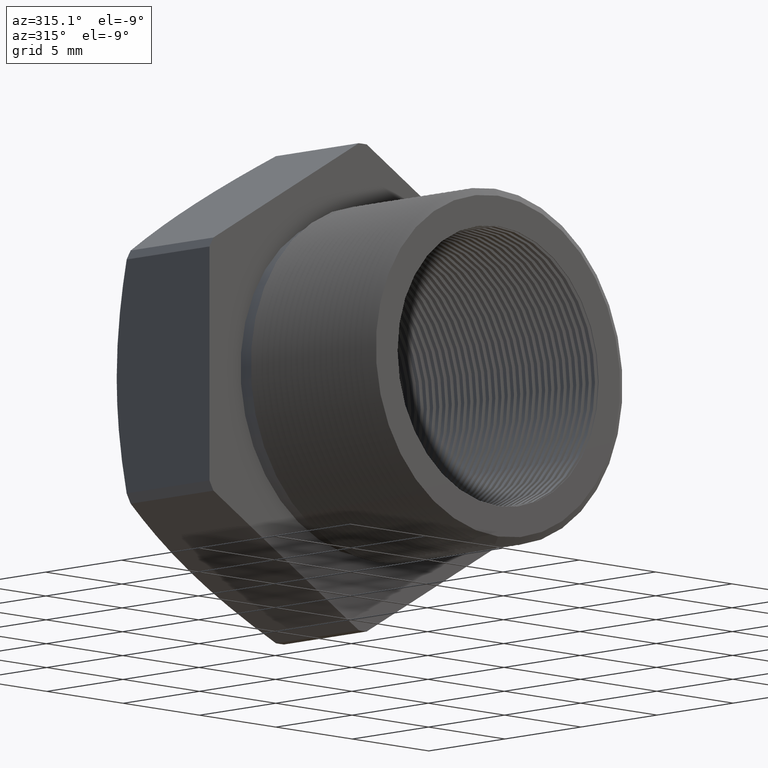
[diagram: clean part render]
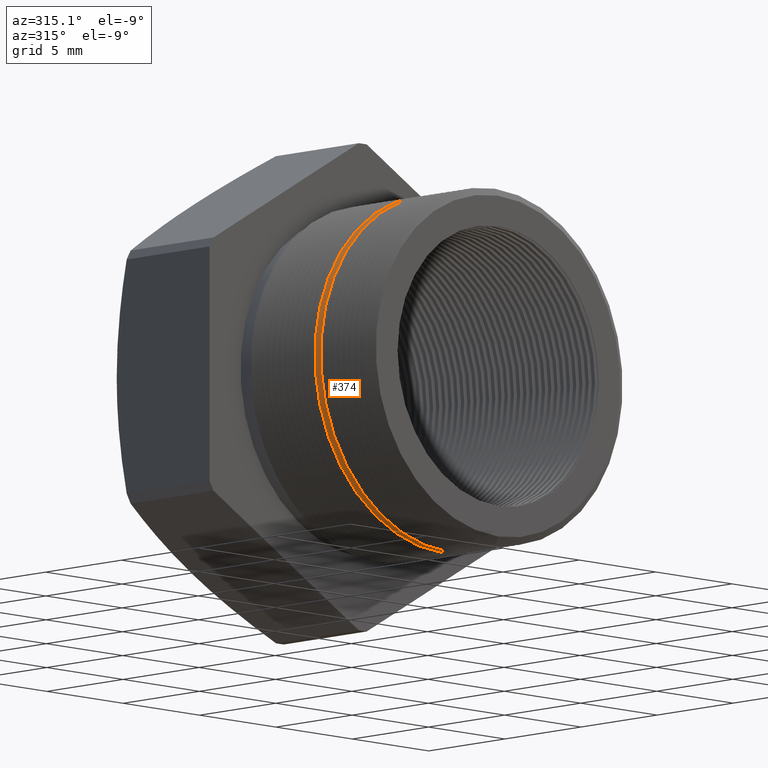
[diagram: same view with one face highlighted and labeled with its STEP entity id]
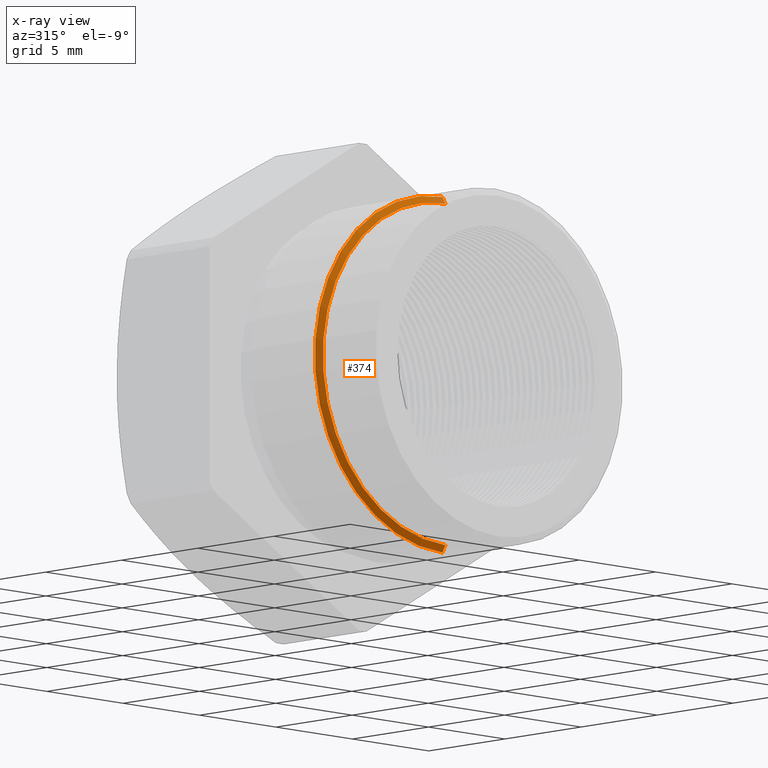
[diagram: x-ray of the same camera — body ghosted, the highlighted face saturated]
A machine part, auxiliary view. The second image highlights one B-rep face of the part: STEP entity #374.
The next image is the same camera in x-ray: the body ghosted, the highlighted face saturated — about 2% of this face is hidden behind the body in this view.
In plain terms, the highlighted conical surface has half-angle 60 deg.
Its self-contained STEP definition (entity closure, byte-faithful):
#345 = ORIENTED_EDGE ( 'NONE', *, *, #418, .F. ) ;
#347 = EDGE_LOOP ( 'NONE', ( #359, #345, #404, #389 ) ) ;
#359 = ORIENTED_EDGE ( 'NONE', *, *, #2140, .F. ) ;
#366 = EDGE_CURVE ( 'NONE', #2141, #2144, #3393, .T. ) ;
#374 = ADVANCED_FACE ( 'NONE', ( #3372 ), #3371, .T. ) ;
#389 = ORIENTED_EDGE ( 'NONE', *, *, #366, .F. ) ;
#404 = ORIENTED_EDGE ( 'NONE', *, *, #2146, .T. ) ;
#418 = EDGE_CURVE ( 'NONE', #2159, #2158, #3489, .T. ) ;
#2140 = EDGE_CURVE ( 'NONE', #2158, #2141, #6614, .T. ) ;
#2141 = VERTEX_POINT ( 'NONE', #6610 ) ;
#2144 = VERTEX_POINT ( 'NONE', #6604 ) ;
#2146 = EDGE_CURVE ( 'NONE', #2159, #2144, #6603, .T. ) ;
#2158 = VERTEX_POINT ( 'NONE', #6635 ) ;
#2159 = VERTEX_POINT ( 'NONE', #6634 ) ;
#3366 = DIRECTION ( 'NONE',  ( 0.0000000000000000000, 0.0000000000000000000, 1.000000000000000000 ) ) ;
#3367 = DIRECTION ( 'NONE',  ( -0.0000000000000000000, 1.000000000000000000, -0.0000000000000000000 ) ) ;
#3368 = CARTESIAN_POINT ( 'NONE',  ( 0.0000000000000000000, -0.03854510941705204700, 0.0000000000000000000 ) ) ;
#3369 = AXIS2_PLACEMENT_3D ( 'NONE', #3368, #3367, #3366 ) ;
#3371 = CONICAL_SURFACE ( 'NONE', #3369, 0.3287738815610546900, 1.047197551196596700 ) ;
#3372 = FACE_OUTER_BOUND ( 'NONE', #347, .T. ) ;
#3389 = DIRECTION ( 'NONE',  ( 0.0000000000000000000, 0.0000000000000000000, 1.000000000000000000 ) ) ;
#3390 = DIRECTION ( 'NONE',  ( -0.0000000000000000000, 1.000000000000000000, -0.0000000000000000000 ) ) ;
#3391 = CARTESIAN_POINT ( 'NONE',  ( 0.0000000000000000000, -0.03854510941705204700, 0.0000000000000000000 ) ) ;
#3392 = AXIS2_PLACEMENT_3D ( 'NONE', #3391, #3390, #3389 ) ;
#3393 = CIRCLE ( 'NONE', #3392, 0.3287738815610546900 ) ;
#3485 = DIRECTION ( 'NONE',  ( 0.0000000000000000000, 0.0000000000000000000, -1.000000000000000000 ) ) ;
#3486 = DIRECTION ( 'NONE',  ( 0.0000000000000000000, -1.000000000000000000, 0.0000000000000000000 ) ) ;
#3487 = CARTESIAN_POINT ( 'NONE',  ( 0.0000000000000000000, -0.04609510941705204100, 0.0000000000000000000 ) ) ;
#3488 = AXIS2_PLACEMENT_3D ( 'NONE', #3487, #3486, #3485 ) ;
#3489 = CIRCLE ( 'NONE', #3488, 0.3156968979639098200 ) ;
#6600 = DIRECTION ( 'NONE',  ( 0.0000000000000000000, 0.5000000000000008900, 0.8660254037844380400 ) ) ;
#6601 = VECTOR ( 'NONE', #6600, 39.37007874015748100 ) ;
#6602 = CARTESIAN_POINT ( 'NONE',  ( 0.0000000000000000000, -0.03854510941705204700, 0.3287738815610546900 ) ) ;
#6603 = LINE ( 'NONE', #6602, #6601 ) ;
#6604 = CARTESIAN_POINT ( 'NONE',  ( 4.026318816969966800E-017, -0.03854510941705204700, 0.3287738815610546900 ) ) ;
#6610 = CARTESIAN_POINT ( 'NONE',  ( 0.0000000000000000000, -0.03854510941705204700, -0.3287738815610546900 ) ) ;
#6611 = DIRECTION ( 'NONE',  ( 1.060575238724906300E-016, 0.5000000000000008900, -0.8660254037844380400 ) ) ;
#6612 = VECTOR ( 'NONE', #6611, 39.37007874015748100 ) ;
#6613 = CARTESIAN_POINT ( 'NONE',  ( 4.026318816969966200E-017, -0.03854510941705204700, -0.3287738815610546900 ) ) ;
#6614 = LINE ( 'NONE', #6613, #6612 ) ;
#6634 = CARTESIAN_POINT ( 'NONE',  ( 0.0000000000000000000, -0.04609510941705204100, 0.3156968979639098200 ) ) ;
#6635 = CARTESIAN_POINT ( 'NONE',  ( 3.946245386446236800E-017, -0.04609510941705204100, -0.3156968979639098200 ) ) ;